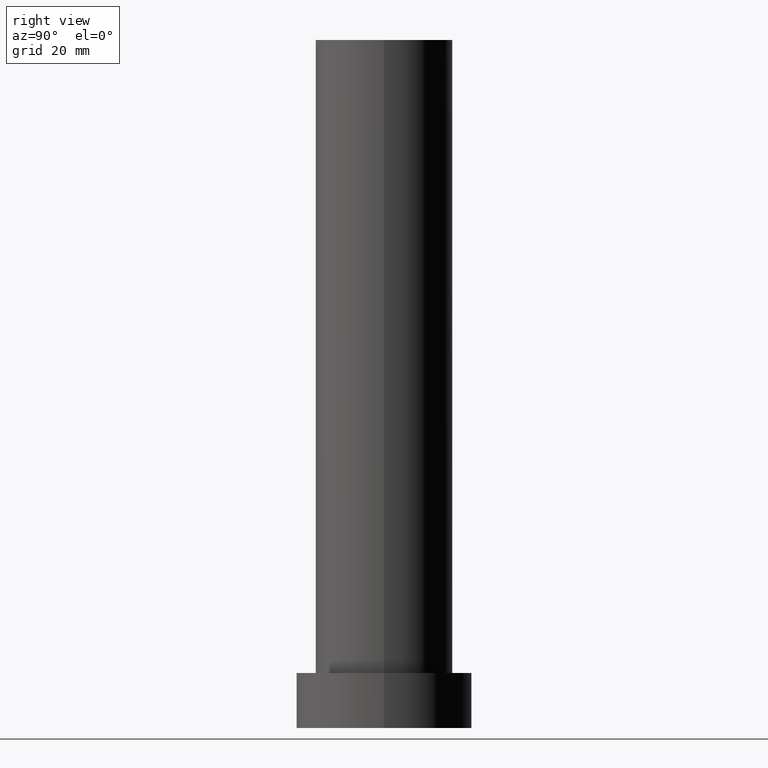
[diagram: clean part render]
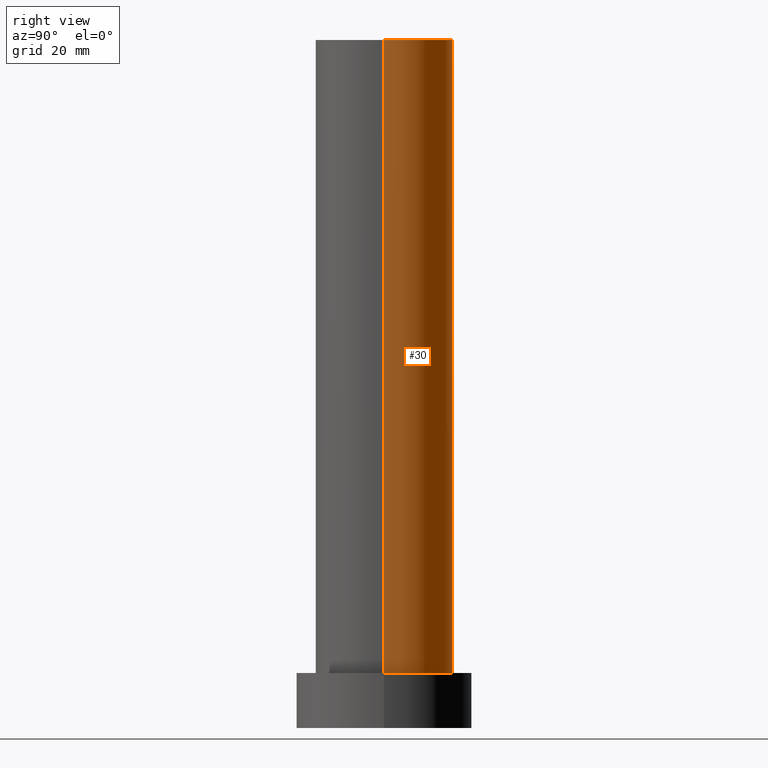
[diagram: same view with one face highlighted and labeled with its STEP entity id]
A machine part, right view. The second image highlights one B-rep face of the part: STEP entity #30.
In plain terms, the highlighted cylindrical surface (partial cylindrical patch) has radius 12.5 mm, axis along (-0, -0, -1).
Its self-contained STEP definition (entity closure, byte-faithful):
#2 = ORIENTED_EDGE ( 'NONE', *, *, #53, .F. ) ;
#8 = DIRECTION ( 'NONE',  ( -0.000000000000000000, -0.000000000000000000, -1.000000000000000000 ) ) ;
#14 = AXIS2_PLACEMENT_3D ( 'NONE', #46, #71, #68 ) ;
#23 = CARTESIAN_POINT ( 'NONE',  ( 12.50000000000000000, 1.530808498934191521E-15, 10.00000000000000000 ) ) ;
#28 = VECTOR ( 'NONE', #250, 1000.000000000000000 ) ;
#30 = ADVANCED_FACE ( 'NONE', ( #186 ), #135, .T. ) ;
#46 = CARTESIAN_POINT ( 'NONE',  ( 0.000000000000000000, 0.000000000000000000, 125.0000000000000000 ) ) ;
#53 = EDGE_CURVE ( 'NONE', #251, #101, #177, .T. ) ;
#66 = DIRECTION ( 'NONE',  ( -0.000000000000000000, -0.000000000000000000, -1.000000000000000000 ) ) ;
#68 = DIRECTION ( 'NONE',  ( 1.000000000000000000, 0.000000000000000000, 0.000000000000000000 ) ) ;
#71 = DIRECTION ( 'NONE',  ( 0.000000000000000000, 0.000000000000000000, 1.000000000000000000 ) ) ;
#72 = DIRECTION ( 'NONE',  ( 1.000000000000000000, 0.000000000000000000, 0.000000000000000000 ) ) ;
#75 = EDGE_CURVE ( 'NONE', #95, #198, #170, .T. ) ;
#91 = DIRECTION ( 'NONE',  ( -1.000000000000000000, 0.000000000000000000, 0.000000000000000000 ) ) ;
#94 = AXIS2_PLACEMENT_3D ( 'NONE', #224, #160, #72 ) ;
#95 = VERTEX_POINT ( 'NONE', #23 ) ;
#101 = VERTEX_POINT ( 'NONE', #159 ) ;
#106 = CARTESIAN_POINT ( 'NONE',  ( -12.50000000000000000, 0.000000000000000000, 125.0000000000000000 ) ) ;
#109 = ORIENTED_EDGE ( 'NONE', *, *, #111, .F. ) ;
#111 = EDGE_CURVE ( 'NONE', #101, #198, #134, .T. ) ;
#118 = EDGE_LOOP ( 'NONE', ( #2, #141, #183, #109 ) ) ;
#123 = VECTOR ( 'NONE', #66, 1000.000000000000000 ) ;
#134 = LINE ( 'NONE', #106, #123 ) ;
#135 = CYLINDRICAL_SURFACE ( 'NONE', #244, 12.50000000000000000 ) ;
#141 = ORIENTED_EDGE ( 'NONE', *, *, #201, .T. ) ;
#157 = CARTESIAN_POINT ( 'NONE',  ( 0.000000000000000000, 0.000000000000000000, 125.0000000000000000 ) ) ;
#159 = CARTESIAN_POINT ( 'NONE',  ( -12.50000000000000000, 0.000000000000000000, 125.0000000000000000 ) ) ;
#160 = DIRECTION ( 'NONE',  ( 0.000000000000000000, 0.000000000000000000, 1.000000000000000000 ) ) ;
#165 = CARTESIAN_POINT ( 'NONE',  ( -12.50000000000000000, 0.000000000000000000, 10.00000000000000000 ) ) ;
#170 = CIRCLE ( 'NONE', #94, 12.50000000000000000 ) ;
#177 = CIRCLE ( 'NONE', #14, 12.50000000000000000 ) ;
#183 = ORIENTED_EDGE ( 'NONE', *, *, #75, .T. ) ;
#186 = FACE_OUTER_BOUND ( 'NONE', #118, .T. ) ;
#198 = VERTEX_POINT ( 'NONE', #165 ) ;
#201 = EDGE_CURVE ( 'NONE', #251, #95, #248, .T. ) ;
#224 = CARTESIAN_POINT ( 'NONE',  ( 0.000000000000000000, 0.000000000000000000, 10.00000000000000000 ) ) ;
#230 = CARTESIAN_POINT ( 'NONE',  ( 12.50000000000000000, 1.530808498934191521E-15, 125.0000000000000000 ) ) ;
#231 = CARTESIAN_POINT ( 'NONE',  ( 12.50000000000000000, 1.530808498934191521E-15, 125.0000000000000000 ) ) ;
#244 = AXIS2_PLACEMENT_3D ( 'NONE', #157, #8, #91 ) ;
#248 = LINE ( 'NONE', #231, #28 ) ;
#250 = DIRECTION ( 'NONE',  ( -0.000000000000000000, -0.000000000000000000, -1.000000000000000000 ) ) ;
#251 = VERTEX_POINT ( 'NONE', #230 ) ;